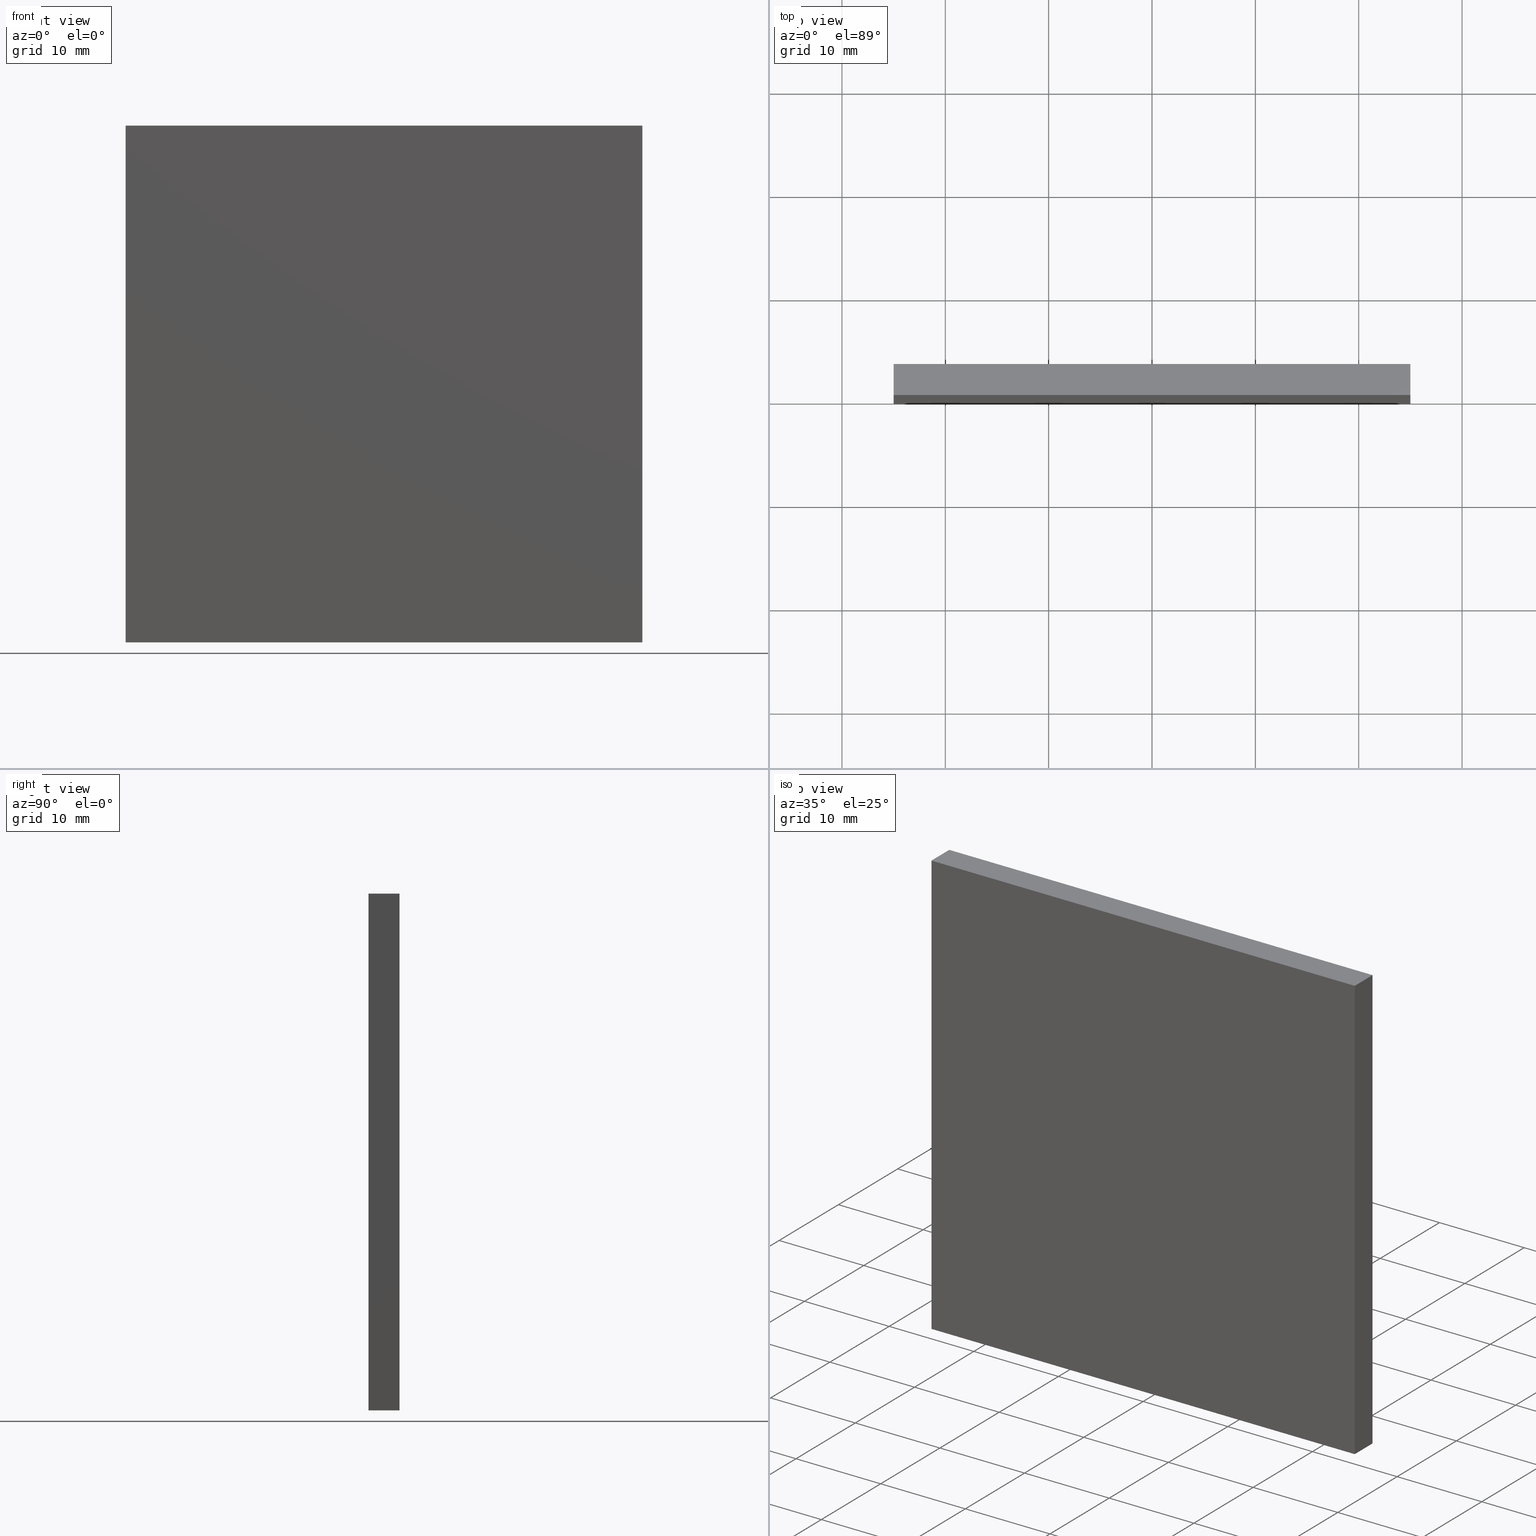
[diagram: canonical four-view strip — front | top / right | iso, engineering-drawing reading convention]
A machine part, canonical four-view strip (front | top / right | iso — engineering-drawing reading convention). The complete STEP part file that produces these views, byte-faithful:
ISO-10303-21;
HEADER;
FILE_DESCRIPTION (( 'STEP AP214' ),
    '1' );
FILE_NAME ('345507.STEP',
    '2019-08-12T08:06:06',
    ( 'user' ),
    ( '΢���й�' ),
    'SwSTEP 2.0',
    'SolidWorks 2016',
    '' );
FILE_SCHEMA (( 'AUTOMOTIVE_DESIGN' ));
ENDSEC;

DATA;
#1 = EDGE_CURVE ( 'NONE', #89, #76, #161, .T. ) ;
#2 = PRODUCT_DEFINITION_CONTEXT ( 'detailed design', #34, 'design' ) ;
#3 = AXIS2_PLACEMENT_3D ( 'NONE', #137, #54, #132 ) ;
#4 = ORIENTED_EDGE ( 'NONE', *, *, #182, .F. ) ;
#5 = DIRECTION ( 'NONE',  ( 0.0000000000000000000, 1.000000000000000000, 0.0000000000000000000 ) ) ;
#6 =( GEOMETRIC_REPRESENTATION_CONTEXT ( 3 ) GLOBAL_UNCERTAINTY_ASSIGNED_CONTEXT ( ( #17 ) ) GLOBAL_UNIT_ASSIGNED_CONTEXT ( ( #169, #175, #170 ) ) REPRESENTATION_CONTEXT ( 'NONE', 'WORKASPACE' ) );
#7 = LINE ( 'NONE', #42, #78 ) ;
#8 = DIRECTION ( 'NONE',  ( -0.0000000000000000000, -1.000000000000000000, -0.0000000000000000000 ) ) ;
#9 = EDGE_CURVE ( 'NONE', #171, #57, #113, .T. ) ;
#10 = CARTESIAN_POINT ( 'NONE',  ( -24.99999999999999300, 3.000000000000000000, 25.00000000000000700 ) ) ;
#11 = CARTESIAN_POINT ( 'NONE',  ( 0.0000000000000000000, 3.000000000000000000, 0.0000000000000000000 ) ) ;
#12 = PRESENTATION_STYLE_ASSIGNMENT (( #147 ) ) ;
#13 = CARTESIAN_POINT ( 'NONE',  ( -25.00000000000000000, 3.000000000000000000, -24.99999999999999300 ) ) ;
#14 = ADVANCED_FACE ( 'NONE', ( #96 ), #133, .T. ) ;
#15 = STYLED_ITEM ( 'NONE', ( #12 ), #127 ) ;
#16 = LINE ( 'NONE', #49, #156 ) ;
#17 = UNCERTAINTY_MEASURE_WITH_UNIT (LENGTH_MEASURE( 1.000000000000000100E-005 ), #169, 'distance_accuracy_value', 'NONE');
#18 = SURFACE_STYLE_FILL_AREA ( #44 ) ;
#19 = EDGE_CURVE ( 'NONE', #76, #171, #16, .T. ) ;
#20 = ORIENTED_EDGE ( 'NONE', *, *, #1, .T. ) ;
#21 = VERTEX_POINT ( 'NONE', #36 ) ;
#22 = PLANE ( 'NONE',  #3 ) ;
#23 = ORIENTED_EDGE ( 'NONE', *, *, #1, .F. ) ;
#24 = CARTESIAN_POINT ( 'NONE',  ( -24.99999999999999300, 3.000000000000000000, 25.00000000000000700 ) ) ;
#25 = AXIS2_PLACEMENT_3D ( 'NONE', #33, #179, #66 ) ;
#26 = LINE ( 'NONE', #103, #178 ) ;
#27 = PRODUCT_CONTEXT ( 'NONE', #40, 'mechanical' ) ;
#28 = DIRECTION ( 'NONE',  ( 0.0000000000000000000, -0.0000000000000000000, 1.000000000000000000 ) ) ;
#29 = DIRECTION ( 'NONE',  ( -1.387778780781445400E-016, 0.0000000000000000000, -1.000000000000000000 ) ) ;
#30 = ORIENTED_EDGE ( 'NONE', *, *, #191, .F. ) ;
#31 = LINE ( 'NONE', #13, #53 ) ;
#32 = VECTOR ( 'NONE', #167, 1000.000000000000000 ) ;
#33 = CARTESIAN_POINT ( 'NONE',  ( -24.99999999999999300, 3.000000000000000000, 25.00000000000000700 ) ) ;
#34 = APPLICATION_CONTEXT ( 'automotive_design' ) ;
#35 = CARTESIAN_POINT ( 'NONE',  ( 25.00000000000000000, 3.000000000000000000, -24.99999999999999300 ) ) ;
#36 = CARTESIAN_POINT ( 'NONE',  ( 25.00000000000000700, 3.000000000000000000, 25.00000000000000700 ) ) ;
#37 = PRESENTATION_LAYER_ASSIGNMENT (  '', '', ( #15 ) ) ;
#38 = PRODUCT_DEFINITION_SHAPE ( 'NONE', 'NONE',  #55 ) ;
#39 = ORIENTED_EDGE ( 'NONE', *, *, #173, .T. ) ;
#40 = APPLICATION_CONTEXT ( 'automotive_design' ) ;
#41 = AXIS2_PLACEMENT_3D ( 'NONE', #50, #118, #148 ) ;
#42 = CARTESIAN_POINT ( 'NONE',  ( 25.00000000000000700, 3.000000000000000000, 25.00000000000000700 ) ) ;
#43 = VERTEX_POINT ( 'NONE', #35 ) ;
#44 = FILL_AREA_STYLE ('',( #194 ) ) ;
#45 = CARTESIAN_POINT ( 'NONE',  ( -25.00000000000000000, 3.000000000000000000, -24.99999999999999300 ) ) ;
#46 = ORIENTED_EDGE ( 'NONE', *, *, #9, .F. ) ;
#47 =( LENGTH_UNIT ( ) NAMED_UNIT ( * ) SI_UNIT ( .MILLI., .METRE. ) );
#48 = CARTESIAN_POINT ( 'NONE',  ( 25.00000000000000000, 3.000000000000000000, -24.99999999999999300 ) ) ;
#49 = CARTESIAN_POINT ( 'NONE',  ( -25.00000000000000000, 0.0000000000000000000, -24.99999999999999300 ) ) ;
#50 = CARTESIAN_POINT ( 'NONE',  ( 0.0000000000000000000, 0.0000000000000000000, 0.0000000000000000000 ) ) ;
#51 = MECHANICAL_DESIGN_GEOMETRIC_PRESENTATION_REPRESENTATION (  '', ( #15 ), #69 ) ;
#52 = DIRECTION ( 'NONE',  ( 1.387778780781445700E-016, 0.0000000000000000000, 1.000000000000000000 ) ) ;
#53 = VECTOR ( 'NONE', #136, 1000.000000000000000 ) ;
#54 = DIRECTION ( 'NONE',  ( 0.0000000000000000000, 1.000000000000000000, 0.0000000000000000000 ) ) ;
#55 = PRODUCT_DEFINITION ( 'δ֪', '', #73, #2 ) ;
#56 = DIRECTION ( 'NONE',  ( -1.000000000000000000, -0.0000000000000000000, -0.0000000000000000000 ) ) ;
#57 = VERTEX_POINT ( 'NONE', #104 ) ;
#58 = EDGE_CURVE ( 'NONE', #201, #76, #174, .T. ) ;
#59 =( NAMED_UNIT ( * ) SI_UNIT ( $, .STERADIAN. ) SOLID_ANGLE_UNIT ( ) );
#60 = LINE ( 'NONE', #45, #129 ) ;
#61 = COLOUR_RGB ( '',1.000000000000000000, 1.000000000000000000, 1.000000000000000000 ) ;
#62 = UNCERTAINTY_MEASURE_WITH_UNIT (LENGTH_MEASURE( 1.000000000000000100E-005 ), #47, 'distance_accuracy_value', 'NONE');
#63 = AXIS2_PLACEMENT_3D ( 'NONE', #11, #5, #28 ) ;
#64 =( NAMED_UNIT ( * ) SI_UNIT ( $, .STERADIAN. ) SOLID_ANGLE_UNIT ( ) );
#65 = CARTESIAN_POINT ( 'NONE',  ( -24.99999999999999300, 0.0000000000000000000, 25.00000000000000700 ) ) ;
#66 = DIRECTION ( 'NONE',  ( -1.000000000000000000, 0.0000000000000000000, -0.0000000000000000000 ) ) ;
#67 = ORIENTED_EDGE ( 'NONE', *, *, #191, .T. ) ;
#68 = CARTESIAN_POINT ( 'NONE',  ( 25.00000000000000000, 3.000000000000000000, -24.99999999999999300 ) ) ;
#69 =( GEOMETRIC_REPRESENTATION_CONTEXT ( 3 ) GLOBAL_UNCERTAINTY_ASSIGNED_CONTEXT ( ( #62 ) ) GLOBAL_UNIT_ASSIGNED_CONTEXT ( ( #47, #165, #64 ) ) REPRESENTATION_CONTEXT ( 'NONE', 'WORKASPACE' ) );
#70 = PLANE ( 'NONE',  #25 ) ;
#71 = LINE ( 'NONE', #48, #189 ) ;
#72 = DIRECTION ( 'NONE',  ( -0.0000000000000000000, -1.000000000000000000, -0.0000000000000000000 ) ) ;
#73 = PRODUCT_DEFINITION_FORMATION_WITH_SPECIFIED_SOURCE ( '�κ�', '', #98, .NOT_KNOWN. ) ;
#74 = EDGE_LOOP ( 'NONE', ( #138, #188, #4, #20 ) ) ;
#75 = PLANE ( 'NONE',  #100 ) ;
#76 = VERTEX_POINT ( 'NONE', #162 ) ;
#77 = LINE ( 'NONE', #199, #139 ) ;
#78 = VECTOR ( 'NONE', #157, 1000.000000000000000 ) ;
#79 = DIRECTION ( 'NONE',  ( 0.0000000000000000000, 0.0000000000000000000, 1.000000000000000000 ) ) ;
#80 = APPLICATION_PROTOCOL_DEFINITION ( 'draft international standard', 'automotive_design', 1998, #34 ) ;
#81 = ADVANCED_FACE ( 'NONE', ( #142 ), #183, .F. ) ;
#82 = ORIENTED_EDGE ( 'NONE', *, *, #19, .F. ) ;
#83 = PRODUCT_RELATED_PRODUCT_CATEGORY ( 'part', '', ( #98 ) ) ;
#84 = DIRECTION ( 'NONE',  ( 1.000000000000000000, 0.0000000000000000000, -0.0000000000000000000 ) ) ;
#85 = ORIENTED_EDGE ( 'NONE', *, *, #159, .F. ) ;
#86 = ADVANCED_FACE ( 'NONE', ( #149 ), #22, .F. ) ;
#87 = FACE_OUTER_BOUND ( 'NONE', #121, .T. ) ;
#88 = ADVANCED_FACE ( 'NONE', ( #87 ), #70, .F. ) ;
#89 = VERTEX_POINT ( 'NONE', #134 ) ;
#90 = CARTESIAN_POINT ( 'NONE',  ( -25.00000000000000000, 3.000000000000000000, -24.99999999999999300 ) ) ;
#91 = EDGE_LOOP ( 'NONE', ( #145, #23, #120, #39 ) ) ;
#92 = EDGE_CURVE ( 'NONE', #43, #89, #60, .T. ) ;
#93 = SURFACE_SIDE_STYLE ('',( #18 ) ) ;
#94 = CLOSED_SHELL ( 'NONE', ( #202, #81, #168, #88, #14, #86 ) ) ;
#95 = EDGE_LOOP ( 'NONE', ( #67, #180, #101, #152 ) ) ;
#96 = FACE_OUTER_BOUND ( 'NONE', #107, .T. ) ;
#97 = SURFACE_SIDE_STYLE ('',( #125 ) ) ;
#98 = PRODUCT ( '345507', '345507', '', ( #27 ) ) ;
#99 = VECTOR ( 'NONE', #8, 1000.000000000000000 ) ;
#100 = AXIS2_PLACEMENT_3D ( 'NONE', #150, #185, #29 ) ;
#101 = ORIENTED_EDGE ( 'NONE', *, *, #140, .F. ) ;
#102 = VECTOR ( 'NONE', #166, 1000.000000000000000 ) ;
#103 = CARTESIAN_POINT ( 'NONE',  ( 25.00000000000000000, 0.0000000000000000000, -24.99999999999999300 ) ) ;
#104 = CARTESIAN_POINT ( 'NONE',  ( 25.00000000000000700, 0.0000000000000000000, 25.00000000000000700 ) ) ;
#105 = ORIENTED_EDGE ( 'NONE', *, *, #140, .T. ) ;
#106 = CARTESIAN_POINT ( 'NONE',  ( -24.99999999999999300, 0.0000000000000000000, 25.00000000000000700 ) ) ;
#107 = EDGE_LOOP ( 'NONE', ( #105, #124, #119, #176 ) ) ;
#108 = VECTOR ( 'NONE', #56, 1000.000000000000000 ) ;
#109 = ADVANCED_BREP_SHAPE_REPRESENTATION ( '345507', ( #127, #41 ), #111 ) ;
#110 = ORIENTED_EDGE ( 'NONE', *, *, #9, .T. ) ;
#111 =( GEOMETRIC_REPRESENTATION_CONTEXT ( 3 ) GLOBAL_UNCERTAINTY_ASSIGNED_CONTEXT ( ( #155 ) ) GLOBAL_UNIT_ASSIGNED_CONTEXT ( ( #197, #112, #59 ) ) REPRESENTATION_CONTEXT ( 'NONE', 'WORKASPACE' ) );
#112 =( NAMED_UNIT ( * ) PLANE_ANGLE_UNIT ( ) SI_UNIT ( $, .RADIAN. ) );
#113 = LINE ( 'NONE', #65, #102 ) ;
#114 = EDGE_LOOP ( 'NONE', ( #30, #46, #82, #123 ) ) ;
#115 = FILL_AREA_STYLE ('',( #131 ) ) ;
#116 = APPLICATION_PROTOCOL_DEFINITION ( 'draft international standard', 'automotive_design', 1998, #40 ) ;
#117 = DIRECTION ( 'NONE',  ( -1.000000000000000000, -0.0000000000000000000, -0.0000000000000000000 ) ) ;
#118 = DIRECTION ( 'NONE',  ( 0.0000000000000000000, 0.0000000000000000000, 1.000000000000000000 ) ) ;
#119 = ORIENTED_EDGE ( 'NONE', *, *, #182, .T. ) ;
#120 = ORIENTED_EDGE ( 'NONE', *, *, #92, .F. ) ;
#121 = EDGE_LOOP ( 'NONE', ( #110, #85, #135, #154 ) ) ;
#122 = AXIS2_PLACEMENT_3D ( 'NONE', #130, #160, #144 ) ;
#123 = ORIENTED_EDGE ( 'NONE', *, *, #58, .F. ) ;
#124 = ORIENTED_EDGE ( 'NONE', *, *, #92, .T. ) ;
#125 = SURFACE_STYLE_FILL_AREA ( #115 ) ;
#126 = CARTESIAN_POINT ( 'NONE',  ( 25.00000000000000000, 0.0000000000000000000, -24.99999999999999300 ) ) ;
#127 = MANIFOLD_SOLID_BREP ( '͹̨-����1', #94 ) ;
#128 = VERTEX_POINT ( 'NONE', #24 ) ;
#129 = VECTOR ( 'NONE', #117, 1000.000000000000000 ) ;
#130 = CARTESIAN_POINT ( 'NONE',  ( 25.00000000000000000, 3.000000000000000000, -24.99999999999999300 ) ) ;
#131 = FILL_AREA_STYLE_COLOUR ( '', #181 ) ;
#132 = DIRECTION ( 'NONE',  ( 0.0000000000000000000, -0.0000000000000000000, 1.000000000000000000 ) ) ;
#133 = PLANE ( 'NONE',  #63 ) ;
#134 = CARTESIAN_POINT ( 'NONE',  ( -25.00000000000000000, 3.000000000000000000, -24.99999999999999300 ) ) ;
#135 = ORIENTED_EDGE ( 'NONE', *, *, #163, .F. ) ;
#136 = DIRECTION ( 'NONE',  ( 1.387778780781445700E-016, 0.0000000000000000000, 1.000000000000000000 ) ) ;
#137 = CARTESIAN_POINT ( 'NONE',  ( 0.0000000000000000000, 0.0000000000000000000, 0.0000000000000000000 ) ) ;
#138 = ORIENTED_EDGE ( 'NONE', *, *, #19, .T. ) ;
#139 = VECTOR ( 'NONE', #186, 1000.000000000000000 ) ;
#140 = EDGE_CURVE ( 'NONE', #21, #43, #177, .T. ) ;
#141 = STYLED_ITEM ( 'NONE', ( #193 ), #109 ) ;
#142 = FACE_OUTER_BOUND ( 'NONE', #91, .T. ) ;
#143 = DIRECTION ( 'NONE',  ( -0.0000000000000000000, -1.000000000000000000, -0.0000000000000000000 ) ) ;
#144 = DIRECTION ( 'NONE',  ( 1.387778780781445400E-016, 0.0000000000000000000, 1.000000000000000000 ) ) ;
#145 = ORIENTED_EDGE ( 'NONE', *, *, #58, .T. ) ;
#146 = SHAPE_DEFINITION_REPRESENTATION ( #38, #109 ) ;
#147 = SURFACE_STYLE_USAGE ( .BOTH. , #93 ) ;
#148 = DIRECTION ( 'NONE',  ( 1.000000000000000000, 0.0000000000000000000, 0.0000000000000000000 ) ) ;
#149 = FACE_OUTER_BOUND ( 'NONE', #114, .T. ) ;
#150 = CARTESIAN_POINT ( 'NONE',  ( -25.00000000000000000, 3.000000000000000000, -24.99999999999999300 ) ) ;
#151 = EDGE_CURVE ( 'NONE', #128, #171, #198, .T. ) ;
#152 = ORIENTED_EDGE ( 'NONE', *, *, #159, .T. ) ;
#153 = FACE_OUTER_BOUND ( 'NONE', #74, .T. ) ;
#154 = ORIENTED_EDGE ( 'NONE', *, *, #151, .T. ) ;
#155 = UNCERTAINTY_MEASURE_WITH_UNIT (LENGTH_MEASURE( 1.000000000000000100E-005 ), #197, 'distance_accuracy_value', 'NONE');
#156 = VECTOR ( 'NONE', #52, 1000.000000000000000 ) ;
#157 = DIRECTION ( 'NONE',  ( -0.0000000000000000000, -1.000000000000000000, -0.0000000000000000000 ) ) ;
#158 = FACE_OUTER_BOUND ( 'NONE', #95, .T. ) ;
#159 = EDGE_CURVE ( 'NONE', #21, #57, #7, .T. ) ;
#160 = DIRECTION ( 'NONE',  ( -1.000000000000000000, 0.0000000000000000000, 1.387778780781445400E-016 ) ) ;
#161 = LINE ( 'NONE', #200, #99 ) ;
#162 = CARTESIAN_POINT ( 'NONE',  ( -25.00000000000000000, 0.0000000000000000000, -24.99999999999999300 ) ) ;
#163 = EDGE_CURVE ( 'NONE', #128, #21, #77, .T. ) ;
#164 = CARTESIAN_POINT ( 'NONE',  ( -25.00000000000000000, 0.0000000000000000000, -24.99999999999999300 ) ) ;
#165 =( NAMED_UNIT ( * ) PLANE_ANGLE_UNIT ( ) SI_UNIT ( $, .RADIAN. ) );
#166 = DIRECTION ( 'NONE',  ( 1.000000000000000000, 0.0000000000000000000, 0.0000000000000000000 ) ) ;
#167 = DIRECTION ( 'NONE',  ( -1.387778780781445700E-016, -0.0000000000000000000, -1.000000000000000000 ) ) ;
#168 = ADVANCED_FACE ( 'NONE', ( #153 ), #75, .F. ) ;
#169 =( LENGTH_UNIT ( ) NAMED_UNIT ( * ) SI_UNIT ( .MILLI., .METRE. ) );
#170 =( NAMED_UNIT ( * ) SI_UNIT ( $, .STERADIAN. ) SOLID_ANGLE_UNIT ( ) );
#171 = VERTEX_POINT ( 'NONE', #106 ) ;
#172 = PLANE ( 'NONE',  #122 ) ;
#173 = EDGE_CURVE ( 'NONE', #43, #201, #71, .T. ) ;
#174 = LINE ( 'NONE', #164, #108 ) ;
#175 =( NAMED_UNIT ( * ) PLANE_ANGLE_UNIT ( ) SI_UNIT ( $, .RADIAN. ) );
#176 = ORIENTED_EDGE ( 'NONE', *, *, #163, .T. ) ;
#177 = LINE ( 'NONE', #68, #32 ) ;
#178 = VECTOR ( 'NONE', #192, 1000.000000000000000 ) ;
#179 = DIRECTION ( 'NONE',  ( 0.0000000000000000000, 0.0000000000000000000, -1.000000000000000000 ) ) ;
#180 = ORIENTED_EDGE ( 'NONE', *, *, #173, .F. ) ;
#181 = COLOUR_RGB ( '',1.000000000000000000, 1.000000000000000000, 1.000000000000000000 ) ;
#182 = EDGE_CURVE ( 'NONE', #89, #128, #31, .T. ) ;
#183 = PLANE ( 'NONE',  #187 ) ;
#184 = SURFACE_STYLE_USAGE ( .BOTH. , #97 ) ;
#185 = DIRECTION ( 'NONE',  ( 1.000000000000000000, 0.0000000000000000000, -1.387778780781445400E-016 ) ) ;
#186 = DIRECTION ( 'NONE',  ( 1.000000000000000000, 0.0000000000000000000, 0.0000000000000000000 ) ) ;
#187 = AXIS2_PLACEMENT_3D ( 'NONE', #90, #79, #84 ) ;
#188 = ORIENTED_EDGE ( 'NONE', *, *, #151, .F. ) ;
#189 = VECTOR ( 'NONE', #72, 1000.000000000000000 ) ;
#190 = PRESENTATION_LAYER_ASSIGNMENT (  '', '', ( #141 ) ) ;
#191 = EDGE_CURVE ( 'NONE', #57, #201, #26, .T. ) ;
#192 = DIRECTION ( 'NONE',  ( -1.387778780781445700E-016, -0.0000000000000000000, -1.000000000000000000 ) ) ;
#193 = PRESENTATION_STYLE_ASSIGNMENT (( #184 ) ) ;
#194 = FILL_AREA_STYLE_COLOUR ( '', #61 ) ;
#195 = VECTOR ( 'NONE', #143, 1000.000000000000000 ) ;
#196 = MECHANICAL_DESIGN_GEOMETRIC_PRESENTATION_REPRESENTATION (  '', ( #141 ), #6 ) ;
#197 =( LENGTH_UNIT ( ) NAMED_UNIT ( * ) SI_UNIT ( .MILLI., .METRE. ) );
#198 = LINE ( 'NONE', #10, #195 ) ;
#199 = CARTESIAN_POINT ( 'NONE',  ( -24.99999999999999300, 3.000000000000000000, 25.00000000000000700 ) ) ;
#200 = CARTESIAN_POINT ( 'NONE',  ( -25.00000000000000000, 3.000000000000000000, -24.99999999999999300 ) ) ;
#201 = VERTEX_POINT ( 'NONE', #126 ) ;
#202 = ADVANCED_FACE ( 'NONE', ( #158 ), #172, .F. ) ;
ENDSEC;
END-ISO-10303-21;
